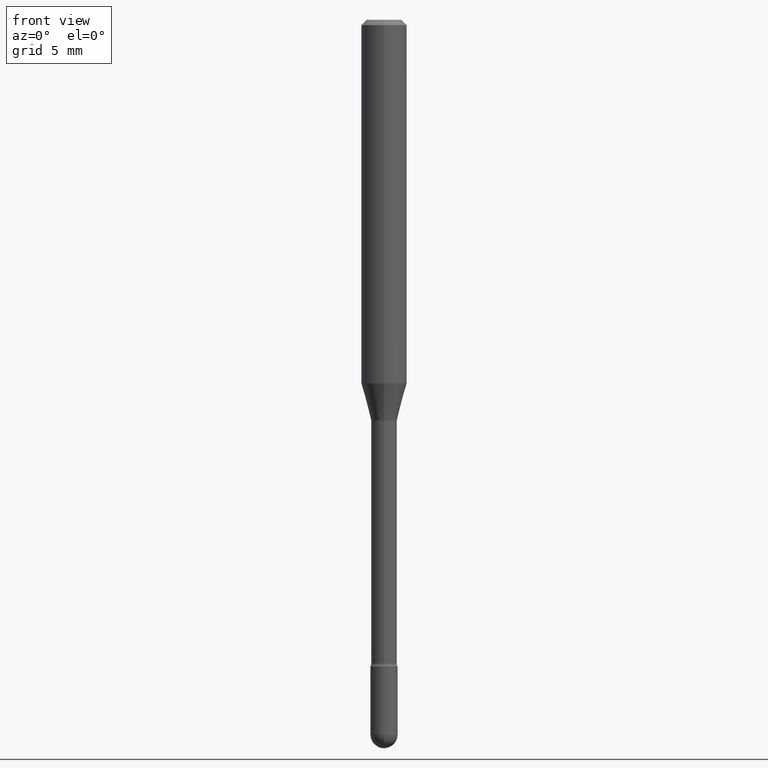
[diagram: clean part render]
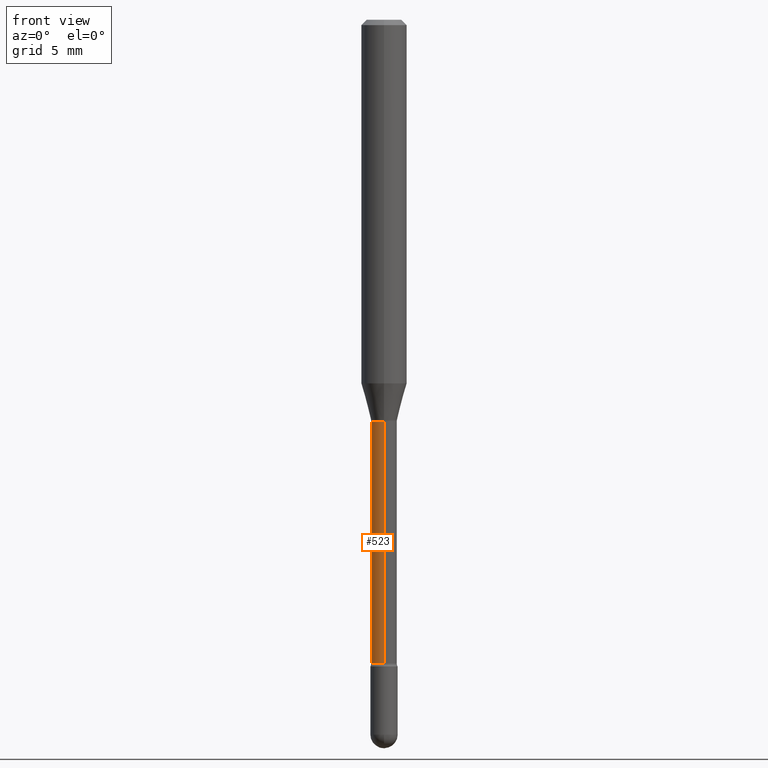
[diagram: same view with one face highlighted and labeled with its STEP entity id]
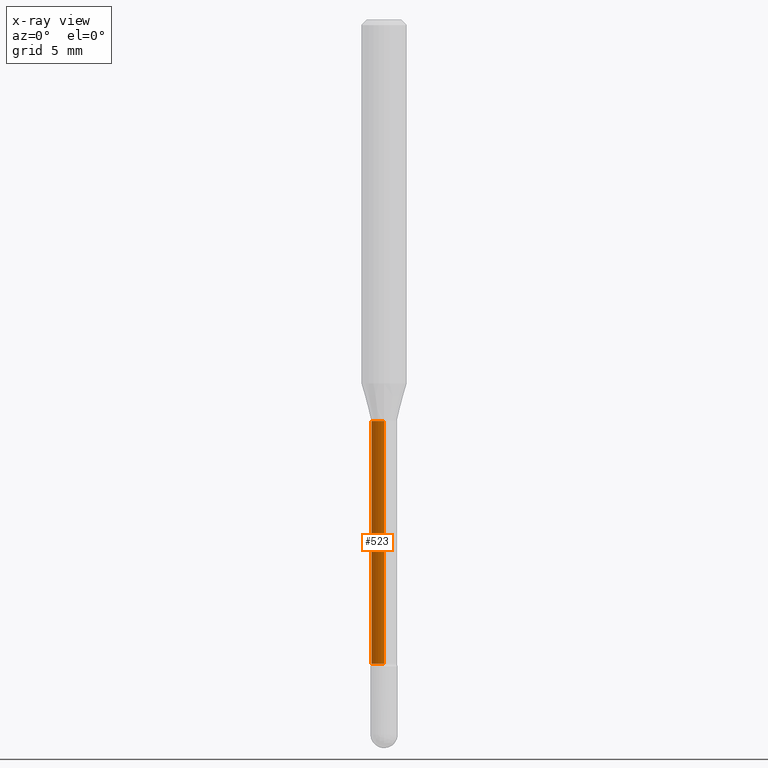
[diagram: x-ray of the same camera — body ghosted, the highlighted face saturated]
A machine part, front view. The second image highlights one B-rep face of the part: STEP entity #523.
The next image is the same camera in x-ray: the body ghosted, the highlighted face saturated — about 0% of this face is hidden behind the body in this view.
In plain terms, the highlighted cylindrical surface (edge-blend (fillet) strip) has radius 0.8954 mm, axis along (-0, 0, 1).
Its self-contained STEP definition (entity closure, byte-faithful):
#54 = DIRECTION ( 'NONE',  ( -6.982962677686266711E-15, -1.000000000000000000, 0.000000000000000000 ) ) ;
#55 = CARTESIAN_POINT ( 'NONE',  ( -2.461494343884138594E-16, -0.03525000000000384076, -1.101974787463810834 ) ) ;
#70 = ORIENTED_EDGE ( 'NONE', *, *, #545, .T. ) ;
#71 = ORIENTED_EDGE ( 'NONE', *, *, #96, .F. ) ;
#86 = CARTESIAN_POINT ( 'NONE',  ( 2.584599201327800595E-16, 0.03524999999999392508, -1.767098259685360384 ) ) ;
#96 = EDGE_CURVE ( 'NONE', #328, #281, #368, .T. ) ;
#107 = DIRECTION ( 'NONE',  ( -2.445465254371968142E-29, 3.491486425241759553E-15, 1.000000000000000000 ) ) ;
#119 = AXIS2_PLACEMENT_3D ( 'NONE', #462, #107, #432 ) ;
#127 = VERTEX_POINT ( 'NONE', #454 ) ;
#135 = CARTESIAN_POINT ( 'NONE',  ( 2.504663143554787774E-16, 0.03524999999999615247, -1.101974787463811278 ) ) ;
#152 = VERTEX_POINT ( 'NONE', #86 ) ;
#215 = VECTOR ( 'NONE', #373, 39.37007874015748143 ) ;
#256 = AXIS2_PLACEMENT_3D ( 'NONE', #466, #348, #54 ) ;
#266 = EDGE_CURVE ( 'NONE', #152, #328, #374, .T. ) ;
#272 = CARTESIAN_POINT ( 'NONE',  ( -2.461494343884411737E-16, -0.03525000000000003825, 6.011482953810182667E-16 ) ) ;
#281 = VERTEX_POINT ( 'NONE', #55 ) ;
#287 = DIRECTION ( 'NONE',  ( -6.982962677686265133E-15, -1.000000000000000000, 3.874961693140799059E-15 ) ) ;
#327 = DIRECTION ( 'NONE',  ( -2.445465254371968142E-29, 3.491486425241759553E-15, 1.000000000000000000 ) ) ;
#328 = VERTEX_POINT ( 'NONE', #135 ) ;
#348 = DIRECTION ( 'NONE',  ( -2.445465254371968142E-29, 3.491486425241759553E-15, 1.000000000000000000 ) ) ;
#350 = CIRCLE ( 'NONE', #256, 0.03525000000000008682 ) ;
#357 = EDGE_CURVE ( 'NONE', #127, #281, #542, .T. ) ;
#364 = EDGE_LOOP ( 'NONE', ( #431, #70, #500, #71 ) ) ;
#368 = CIRCLE ( 'NONE', #390, 0.03524999999999999661 ) ;
#373 = DIRECTION ( 'NONE',  ( -2.445465254371968142E-29, 3.491486425241759553E-15, 1.000000000000000000 ) ) ;
#374 = LINE ( 'NONE', #425, #397 ) ;
#386 = CYLINDRICAL_SURFACE ( 'NONE', #119, 0.03525000000000003825 ) ;
#390 = AXIS2_PLACEMENT_3D ( 'NONE', #410, #508, #287 ) ;
#397 = VECTOR ( 'NONE', #327, 39.37007874015748143 ) ;
#410 = CARTESIAN_POINT ( 'NONE',  ( 2.694841053936684124E-29, -3.847530011388569160E-15, -1.101974787463811056 ) ) ;
#425 = CARTESIAN_POINT ( 'NONE',  ( 2.504663143554355873E-16, 0.03525000000000003825, 3.549985024014739091E-16 ) ) ;
#431 = ORIENTED_EDGE ( 'NONE', *, *, #266, .F. ) ;
#432 = DIRECTION ( 'NONE',  ( -6.982962677686266711E-15, -1.000000000000000000, 3.491486425241760737E-15 ) ) ;
#454 = CARTESIAN_POINT ( 'NONE',  ( -2.461494343883982794E-16, -0.03525000000000625550, -1.767098259685360384 ) ) ;
#462 = CARTESIAN_POINT ( 'NONE',  ( -1.169113584055446105E-44, 1.669184350826100908E-30, 4.780733988912460139E-16 ) ) ;
#466 = CARTESIAN_POINT ( 'NONE',  ( 4.321377395121722522E-29, -6.169799585759774289E-15, -1.767098259685360384 ) ) ;
#468 = FACE_OUTER_BOUND ( 'NONE', #364, .T. ) ;
#500 = ORIENTED_EDGE ( 'NONE', *, *, #357, .T. ) ;
#508 = DIRECTION ( 'NONE',  ( -2.445465254371968142E-29, 3.491486425241759553E-15, 1.000000000000000000 ) ) ;
#523 = ADVANCED_FACE ( 'NONE', ( #468 ), #386, .T. ) ;
#542 = LINE ( 'NONE', #272, #215 ) ;
#545 = EDGE_CURVE ( 'NONE', #152, #127, #350, .T. ) ;